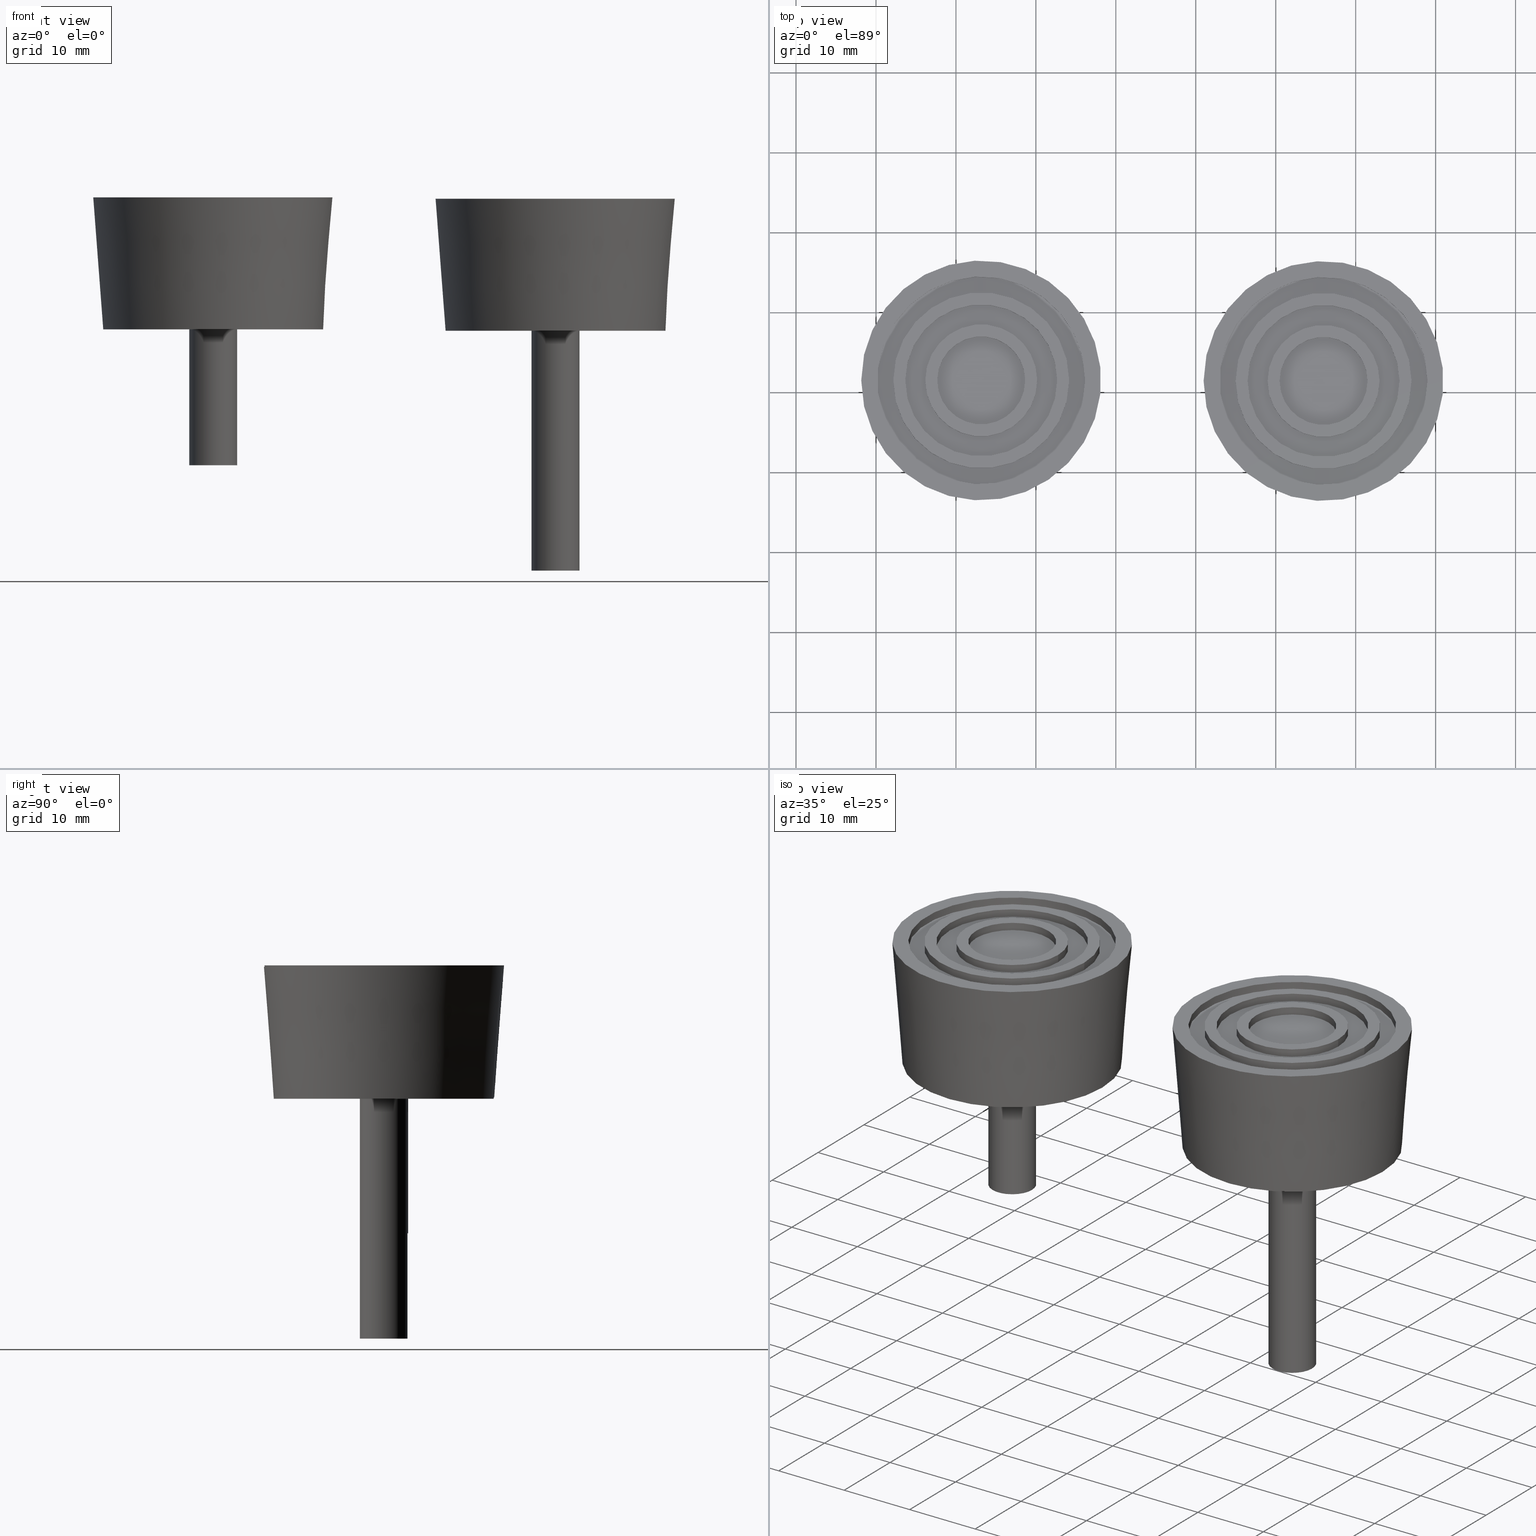
[diagram: canonical four-view strip — front | top / right | iso, engineering-drawing reading convention]
A machine part, canonical four-view strip (front | top / right | iso — engineering-drawing reading convention). The complete STEP part file that produces these views, byte-faithful:
ISO-10303-21;
HEADER;
/* Generated by software containing ST-Developer
 * from STEP Tools, Inc. (www.steptools.com) 
 */

FILE_DESCRIPTION(
/* description */ (''),
/* implementation_level */ '2;1');

FILE_NAME(
/* name */ '\\\\SYNOLOGYNAS\\web\\db2\\PRM6-2\\\X2\B3C4BA74\X0\\\PRM6-
2_M.stp',
/* time_stamp */ '2023-04-18T15:56:30+09:00',
/* author */ ('user'),
/* organization */ (''),
/* preprocessor_version */ 'ST-DEVELOPER v15.6',
/* originating_system */ 'Autodesk Inventor 2015',
/* authorisation */ '');

FILE_SCHEMA (('AUTOMOTIVE_DESIGN { 1 0 10303 214 3 1 1 }'));
ENDSEC;

DATA;
#10=MECHANICAL_DESIGN_GEOMETRIC_PRESENTATION_REPRESENTATION('',(#23,#24),
#1028);
#11=ITEM_DEFINED_TRANSFORMATION($,$,#561,#662);
#12=ITEM_DEFINED_TRANSFORMATION($,$,#611,#663);
#13=(
REPRESENTATION_RELATIONSHIP($,$,#1043,#1045)
REPRESENTATION_RELATIONSHIP_WITH_TRANSFORMATION(#11)
SHAPE_REPRESENTATION_RELATIONSHIP()
);
#14=(
REPRESENTATION_RELATIONSHIP($,$,#1044,#1045)
REPRESENTATION_RELATIONSHIP_WITH_TRANSFORMATION(#12)
SHAPE_REPRESENTATION_RELATIONSHIP()
);
#15=CONTEXT_DEPENDENT_SHAPE_REPRESENTATION(#13,#1041);
#16=CONTEXT_DEPENDENT_SHAPE_REPRESENTATION(#14,#1042);
#17=NEXT_ASSEMBLY_USAGE_OCCURRENCE('DR_PRM6-2(17):1',$,$,#1049,#1047,$);
#18=NEXT_ASSEMBLY_USAGE_OCCURRENCE('DR_PRM6-2(30):1',$,$,#1049,#1048,$);
#19=SHAPE_REPRESENTATION_RELATIONSHIP('SRR','None',#1043,#21);
#20=SHAPE_REPRESENTATION_RELATIONSHIP('SRR','None',#1044,#22);
#21=ADVANCED_BREP_SHAPE_REPRESENTATION($,(#25),#1025);
#22=ADVANCED_BREP_SHAPE_REPRESENTATION($,(#26),#1026);
#23=STYLED_ITEM('',(#1062),#25);
#24=STYLED_ITEM('',(#1062),#26);
#25=MANIFOLD_SOLID_BREP('\X2\C194B9ACB4DC\X0\1',#559);
#26=MANIFOLD_SOLID_BREP('\X2\C194B9ACB4DC\X0\1',#560);
#27=CONICAL_SURFACE('',#610,15.,4.33231398318851);
#28=CONICAL_SURFACE('',#660,15.,4.33231398318851);
#29=PLANE('',#565);
#30=PLANE('',#572);
#31=PLANE('',#579);
#32=PLANE('',#583);
#33=PLANE('',#584);
#34=PLANE('',#585);
#35=PLANE('',#593);
#36=PLANE('',#600);
#37=PLANE('',#604);
#38=PLANE('',#605);
#39=PLANE('',#606);
#40=PLANE('',#608);
#41=PLANE('',#609);
#42=PLANE('',#615);
#43=PLANE('',#622);
#44=PLANE('',#629);
#45=PLANE('',#633);
#46=PLANE('',#634);
#47=PLANE('',#635);
#48=PLANE('',#643);
#49=PLANE('',#650);
#50=PLANE('',#654);
#51=PLANE('',#655);
#52=PLANE('',#656);
#53=PLANE('',#658);
#54=PLANE('',#659);
#55=FACE_BOUND('',#152,.T.);
#56=FACE_BOUND('',#155,.T.);
#57=FACE_BOUND('',#157,.T.);
#58=FACE_BOUND('',#159,.T.);
#59=FACE_BOUND('',#161,.T.);
#60=FACE_BOUND('',#163,.T.);
#61=FACE_BOUND('',#165,.T.);
#62=FACE_BOUND('',#167,.T.);
#63=FACE_BOUND('',#169,.T.);
#64=FACE_BOUND('',#171,.T.);
#65=FACE_BOUND('',#173,.T.);
#66=FACE_BOUND('',#175,.T.);
#67=FACE_BOUND('',#177,.T.);
#68=FACE_BOUND('',#179,.T.);
#69=FACE_BOUND('',#181,.T.);
#70=FACE_BOUND('',#183,.T.);
#71=FACE_BOUND('',#185,.T.);
#72=FACE_BOUND('',#187,.T.);
#73=FACE_BOUND('',#190,.T.);
#74=FACE_BOUND('',#192,.T.);
#75=FACE_BOUND('',#194,.T.);
#76=FACE_BOUND('',#196,.T.);
#77=FACE_BOUND('',#198,.T.);
#78=FACE_BOUND('',#200,.T.);
#79=FACE_BOUND('',#203,.T.);
#80=FACE_BOUND('',#205,.T.);
#81=FACE_BOUND('',#207,.T.);
#82=FACE_BOUND('',#209,.T.);
#83=FACE_BOUND('',#211,.T.);
#84=FACE_BOUND('',#213,.T.);
#85=FACE_BOUND('',#215,.T.);
#86=FACE_BOUND('',#217,.T.);
#87=FACE_BOUND('',#219,.T.);
#88=FACE_BOUND('',#221,.T.);
#89=FACE_BOUND('',#223,.T.);
#90=FACE_BOUND('',#225,.T.);
#91=FACE_BOUND('',#227,.T.);
#92=FACE_BOUND('',#229,.T.);
#93=FACE_BOUND('',#231,.T.);
#94=FACE_BOUND('',#233,.T.);
#95=FACE_BOUND('',#235,.T.);
#96=FACE_BOUND('',#238,.T.);
#97=FACE_BOUND('',#240,.T.);
#98=FACE_BOUND('',#242,.T.);
#99=FACE_BOUND('',#244,.T.);
#100=FACE_BOUND('',#246,.T.);
#101=FACE_OUTER_BOUND('',#151,.T.);
#102=FACE_OUTER_BOUND('',#153,.T.);
#103=FACE_OUTER_BOUND('',#154,.T.);
#104=FACE_OUTER_BOUND('',#156,.T.);
#105=FACE_OUTER_BOUND('',#158,.T.);
#106=FACE_OUTER_BOUND('',#160,.T.);
#107=FACE_OUTER_BOUND('',#162,.T.);
#108=FACE_OUTER_BOUND('',#164,.T.);
#109=FACE_OUTER_BOUND('',#166,.T.);
#110=FACE_OUTER_BOUND('',#168,.T.);
#111=FACE_OUTER_BOUND('',#170,.T.);
#112=FACE_OUTER_BOUND('',#172,.T.);
#113=FACE_OUTER_BOUND('',#174,.T.);
#114=FACE_OUTER_BOUND('',#176,.T.);
#115=FACE_OUTER_BOUND('',#178,.T.);
#116=FACE_OUTER_BOUND('',#180,.T.);
#117=FACE_OUTER_BOUND('',#182,.T.);
#118=FACE_OUTER_BOUND('',#184,.T.);
#119=FACE_OUTER_BOUND('',#186,.T.);
#120=FACE_OUTER_BOUND('',#188,.T.);
#121=FACE_OUTER_BOUND('',#189,.T.);
#122=FACE_OUTER_BOUND('',#191,.T.);
#123=FACE_OUTER_BOUND('',#193,.T.);
#124=FACE_OUTER_BOUND('',#195,.T.);
#125=FACE_OUTER_BOUND('',#197,.T.);
#126=FACE_OUTER_BOUND('',#199,.T.);
#127=FACE_OUTER_BOUND('',#201,.T.);
#128=FACE_OUTER_BOUND('',#202,.T.);
#129=FACE_OUTER_BOUND('',#204,.T.);
#130=FACE_OUTER_BOUND('',#206,.T.);
#131=FACE_OUTER_BOUND('',#208,.T.);
#132=FACE_OUTER_BOUND('',#210,.T.);
#133=FACE_OUTER_BOUND('',#212,.T.);
#134=FACE_OUTER_BOUND('',#214,.T.);
#135=FACE_OUTER_BOUND('',#216,.T.);
#136=FACE_OUTER_BOUND('',#218,.T.);
#137=FACE_OUTER_BOUND('',#220,.T.);
#138=FACE_OUTER_BOUND('',#222,.T.);
#139=FACE_OUTER_BOUND('',#224,.T.);
#140=FACE_OUTER_BOUND('',#226,.T.);
#141=FACE_OUTER_BOUND('',#228,.T.);
#142=FACE_OUTER_BOUND('',#230,.T.);
#143=FACE_OUTER_BOUND('',#232,.T.);
#144=FACE_OUTER_BOUND('',#234,.T.);
#145=FACE_OUTER_BOUND('',#236,.T.);
#146=FACE_OUTER_BOUND('',#237,.T.);
#147=FACE_OUTER_BOUND('',#239,.T.);
#148=FACE_OUTER_BOUND('',#241,.T.);
#149=FACE_OUTER_BOUND('',#243,.T.);
#150=FACE_OUTER_BOUND('',#245,.T.);
#151=EDGE_LOOP('',(#391));
#152=EDGE_LOOP('',(#392));
#153=EDGE_LOOP('',(#393));
#154=EDGE_LOOP('',(#394));
#155=EDGE_LOOP('',(#395));
#156=EDGE_LOOP('',(#396));
#157=EDGE_LOOP('',(#397));
#158=EDGE_LOOP('',(#398));
#159=EDGE_LOOP('',(#399));
#160=EDGE_LOOP('',(#400));
#161=EDGE_LOOP('',(#401));
#162=EDGE_LOOP('',(#402));
#163=EDGE_LOOP('',(#403));
#164=EDGE_LOOP('',(#404));
#165=EDGE_LOOP('',(#405));
#166=EDGE_LOOP('',(#406));
#167=EDGE_LOOP('',(#407));
#168=EDGE_LOOP('',(#408));
#169=EDGE_LOOP('',(#409));
#170=EDGE_LOOP('',(#410));
#171=EDGE_LOOP('',(#411));
#172=EDGE_LOOP('',(#412));
#173=EDGE_LOOP('',(#413));
#174=EDGE_LOOP('',(#414));
#175=EDGE_LOOP('',(#415));
#176=EDGE_LOOP('',(#416));
#177=EDGE_LOOP('',(#417));
#178=EDGE_LOOP('',(#418));
#179=EDGE_LOOP('',(#419));
#180=EDGE_LOOP('',(#420));
#181=EDGE_LOOP('',(#421));
#182=EDGE_LOOP('',(#422));
#183=EDGE_LOOP('',(#423));
#184=EDGE_LOOP('',(#424));
#185=EDGE_LOOP('',(#425));
#186=EDGE_LOOP('',(#426));
#187=EDGE_LOOP('',(#427));
#188=EDGE_LOOP('',(#428));
#189=EDGE_LOOP('',(#429));
#190=EDGE_LOOP('',(#430));
#191=EDGE_LOOP('',(#431));
#192=EDGE_LOOP('',(#432));
#193=EDGE_LOOP('',(#433));
#194=EDGE_LOOP('',(#434));
#195=EDGE_LOOP('',(#435));
#196=EDGE_LOOP('',(#436));
#197=EDGE_LOOP('',(#437));
#198=EDGE_LOOP('',(#438));
#199=EDGE_LOOP('',(#439));
#200=EDGE_LOOP('',(#440));
#201=EDGE_LOOP('',(#441));
#202=EDGE_LOOP('',(#442));
#203=EDGE_LOOP('',(#443));
#204=EDGE_LOOP('',(#444));
#205=EDGE_LOOP('',(#445));
#206=EDGE_LOOP('',(#446));
#207=EDGE_LOOP('',(#447));
#208=EDGE_LOOP('',(#448));
#209=EDGE_LOOP('',(#449));
#210=EDGE_LOOP('',(#450));
#211=EDGE_LOOP('',(#451));
#212=EDGE_LOOP('',(#452));
#213=EDGE_LOOP('',(#453));
#214=EDGE_LOOP('',(#454));
#215=EDGE_LOOP('',(#455));
#216=EDGE_LOOP('',(#456));
#217=EDGE_LOOP('',(#457));
#218=EDGE_LOOP('',(#458));
#219=EDGE_LOOP('',(#459));
#220=EDGE_LOOP('',(#460));
#221=EDGE_LOOP('',(#461));
#222=EDGE_LOOP('',(#462));
#223=EDGE_LOOP('',(#463));
#224=EDGE_LOOP('',(#464));
#225=EDGE_LOOP('',(#465));
#226=EDGE_LOOP('',(#466));
#227=EDGE_LOOP('',(#467));
#228=EDGE_LOOP('',(#468));
#229=EDGE_LOOP('',(#469));
#230=EDGE_LOOP('',(#470));
#231=EDGE_LOOP('',(#471));
#232=EDGE_LOOP('',(#472));
#233=EDGE_LOOP('',(#473));
#234=EDGE_LOOP('',(#474));
#235=EDGE_LOOP('',(#475));
#236=EDGE_LOOP('',(#476));
#237=EDGE_LOOP('',(#477));
#238=EDGE_LOOP('',(#478));
#239=EDGE_LOOP('',(#479));
#240=EDGE_LOOP('',(#480));
#241=EDGE_LOOP('',(#481));
#242=EDGE_LOOP('',(#482));
#243=EDGE_LOOP('',(#483));
#244=EDGE_LOOP('',(#484));
#245=EDGE_LOOP('',(#485));
#246=EDGE_LOOP('',(#486));
#247=CIRCLE('',#563,3.);
#248=CIRCLE('',#564,3.);
#249=CIRCLE('',#567,10.);
#250=CIRCLE('',#568,10.);
#251=CIRCLE('',#570,11.75);
#252=CIRCLE('',#571,11.75);
#253=CIRCLE('',#574,6.5);
#254=CIRCLE('',#575,6.5);
#255=CIRCLE('',#577,8.25);
#256=CIRCLE('',#578,8.25);
#257=CIRCLE('',#581,4.75);
#258=CIRCLE('',#582,4.75);
#259=CIRCLE('',#586,13.75);
#260=CIRCLE('',#588,11.);
#261=CIRCLE('',#589,11.);
#262=CIRCLE('',#591,13.);
#263=CIRCLE('',#592,13.);
#264=CIRCLE('',#595,7.);
#265=CIRCLE('',#596,7.);
#266=CIRCLE('',#598,9.5);
#267=CIRCLE('',#599,9.5);
#268=CIRCLE('',#602,5.5);
#269=CIRCLE('',#603,5.5);
#270=CIRCLE('',#607,15.);
#271=CIRCLE('',#613,3.);
#272=CIRCLE('',#614,3.);
#273=CIRCLE('',#617,10.);
#274=CIRCLE('',#618,10.);
#275=CIRCLE('',#620,11.75);
#276=CIRCLE('',#621,11.75);
#277=CIRCLE('',#624,6.5);
#278=CIRCLE('',#625,6.5);
#279=CIRCLE('',#627,8.25);
#280=CIRCLE('',#628,8.25);
#281=CIRCLE('',#631,4.75);
#282=CIRCLE('',#632,4.75);
#283=CIRCLE('',#636,13.75);
#284=CIRCLE('',#638,11.);
#285=CIRCLE('',#639,11.);
#286=CIRCLE('',#641,13.);
#287=CIRCLE('',#642,13.);
#288=CIRCLE('',#645,7.);
#289=CIRCLE('',#646,7.);
#290=CIRCLE('',#648,9.5);
#291=CIRCLE('',#649,9.5);
#292=CIRCLE('',#652,5.5);
#293=CIRCLE('',#653,5.5);
#294=CIRCLE('',#657,15.);
#295=VERTEX_POINT('',#872);
#296=VERTEX_POINT('',#874);
#297=VERTEX_POINT('',#878);
#298=VERTEX_POINT('',#880);
#299=VERTEX_POINT('',#883);
#300=VERTEX_POINT('',#885);
#301=VERTEX_POINT('',#889);
#302=VERTEX_POINT('',#891);
#303=VERTEX_POINT('',#894);
#304=VERTEX_POINT('',#896);
#305=VERTEX_POINT('',#900);
#306=VERTEX_POINT('',#902);
#307=VERTEX_POINT('',#907);
#308=VERTEX_POINT('',#910);
#309=VERTEX_POINT('',#912);
#310=VERTEX_POINT('',#915);
#311=VERTEX_POINT('',#917);
#312=VERTEX_POINT('',#921);
#313=VERTEX_POINT('',#923);
#314=VERTEX_POINT('',#926);
#315=VERTEX_POINT('',#928);
#316=VERTEX_POINT('',#932);
#317=VERTEX_POINT('',#934);
#318=VERTEX_POINT('',#939);
#319=VERTEX_POINT('',#946);
#320=VERTEX_POINT('',#948);
#321=VERTEX_POINT('',#952);
#322=VERTEX_POINT('',#954);
#323=VERTEX_POINT('',#957);
#324=VERTEX_POINT('',#959);
#325=VERTEX_POINT('',#963);
#326=VERTEX_POINT('',#965);
#327=VERTEX_POINT('',#968);
#328=VERTEX_POINT('',#970);
#329=VERTEX_POINT('',#974);
#330=VERTEX_POINT('',#976);
#331=VERTEX_POINT('',#981);
#332=VERTEX_POINT('',#984);
#333=VERTEX_POINT('',#986);
#334=VERTEX_POINT('',#989);
#335=VERTEX_POINT('',#991);
#336=VERTEX_POINT('',#995);
#337=VERTEX_POINT('',#997);
#338=VERTEX_POINT('',#1000);
#339=VERTEX_POINT('',#1002);
#340=VERTEX_POINT('',#1006);
#341=VERTEX_POINT('',#1008);
#342=VERTEX_POINT('',#1013);
#343=EDGE_CURVE('',#295,#295,#247,.T.);
#344=EDGE_CURVE('',#296,#296,#248,.T.);
#345=EDGE_CURVE('',#297,#297,#249,.T.);
#346=EDGE_CURVE('',#298,#298,#250,.T.);
#347=EDGE_CURVE('',#299,#299,#251,.T.);
#348=EDGE_CURVE('',#300,#300,#252,.T.);
#349=EDGE_CURVE('',#301,#301,#253,.T.);
#350=EDGE_CURVE('',#302,#302,#254,.T.);
#351=EDGE_CURVE('',#303,#303,#255,.T.);
#352=EDGE_CURVE('',#304,#304,#256,.T.);
#353=EDGE_CURVE('',#305,#305,#257,.T.);
#354=EDGE_CURVE('',#306,#306,#258,.T.);
#355=EDGE_CURVE('',#307,#307,#259,.T.);
#356=EDGE_CURVE('',#308,#308,#260,.T.);
#357=EDGE_CURVE('',#309,#309,#261,.T.);
#358=EDGE_CURVE('',#310,#310,#262,.T.);
#359=EDGE_CURVE('',#311,#311,#263,.T.);
#360=EDGE_CURVE('',#312,#312,#264,.T.);
#361=EDGE_CURVE('',#313,#313,#265,.T.);
#362=EDGE_CURVE('',#314,#314,#266,.T.);
#363=EDGE_CURVE('',#315,#315,#267,.T.);
#364=EDGE_CURVE('',#316,#316,#268,.T.);
#365=EDGE_CURVE('',#317,#317,#269,.T.);
#366=EDGE_CURVE('',#318,#318,#270,.T.);
#367=EDGE_CURVE('',#319,#319,#271,.T.);
#368=EDGE_CURVE('',#320,#320,#272,.T.);
#369=EDGE_CURVE('',#321,#321,#273,.T.);
#370=EDGE_CURVE('',#322,#322,#274,.T.);
#371=EDGE_CURVE('',#323,#323,#275,.T.);
#372=EDGE_CURVE('',#324,#324,#276,.T.);
#373=EDGE_CURVE('',#325,#325,#277,.T.);
#374=EDGE_CURVE('',#326,#326,#278,.T.);
#375=EDGE_CURVE('',#327,#327,#279,.T.);
#376=EDGE_CURVE('',#328,#328,#280,.T.);
#377=EDGE_CURVE('',#329,#329,#281,.T.);
#378=EDGE_CURVE('',#330,#330,#282,.T.);
#379=EDGE_CURVE('',#331,#331,#283,.T.);
#380=EDGE_CURVE('',#332,#332,#284,.T.);
#381=EDGE_CURVE('',#333,#333,#285,.T.);
#382=EDGE_CURVE('',#334,#334,#286,.T.);
#383=EDGE_CURVE('',#335,#335,#287,.T.);
#384=EDGE_CURVE('',#336,#336,#288,.T.);
#385=EDGE_CURVE('',#337,#337,#289,.T.);
#386=EDGE_CURVE('',#338,#338,#290,.T.);
#387=EDGE_CURVE('',#339,#339,#291,.T.);
#388=EDGE_CURVE('',#340,#340,#292,.T.);
#389=EDGE_CURVE('',#341,#341,#293,.T.);
#390=EDGE_CURVE('',#342,#342,#294,.T.);
#391=ORIENTED_EDGE('',*,*,#343,.F.);
#392=ORIENTED_EDGE('',*,*,#344,.F.);
#393=ORIENTED_EDGE('',*,*,#343,.T.);
#394=ORIENTED_EDGE('',*,*,#345,.T.);
#395=ORIENTED_EDGE('',*,*,#346,.F.);
#396=ORIENTED_EDGE('',*,*,#347,.T.);
#397=ORIENTED_EDGE('',*,*,#348,.F.);
#398=ORIENTED_EDGE('',*,*,#347,.F.);
#399=ORIENTED_EDGE('',*,*,#345,.F.);
#400=ORIENTED_EDGE('',*,*,#349,.T.);
#401=ORIENTED_EDGE('',*,*,#350,.F.);
#402=ORIENTED_EDGE('',*,*,#351,.T.);
#403=ORIENTED_EDGE('',*,*,#352,.F.);
#404=ORIENTED_EDGE('',*,*,#351,.F.);
#405=ORIENTED_EDGE('',*,*,#349,.F.);
#406=ORIENTED_EDGE('',*,*,#353,.T.);
#407=ORIENTED_EDGE('',*,*,#354,.F.);
#408=ORIENTED_EDGE('',*,*,#353,.F.);
#409=ORIENTED_EDGE('',*,*,#344,.T.);
#410=ORIENTED_EDGE('',*,*,#346,.T.);
#411=ORIENTED_EDGE('',*,*,#352,.T.);
#412=ORIENTED_EDGE('',*,*,#355,.F.);
#413=ORIENTED_EDGE('',*,*,#348,.T.);
#414=ORIENTED_EDGE('',*,*,#356,.T.);
#415=ORIENTED_EDGE('',*,*,#357,.F.);
#416=ORIENTED_EDGE('',*,*,#358,.T.);
#417=ORIENTED_EDGE('',*,*,#359,.F.);
#418=ORIENTED_EDGE('',*,*,#358,.F.);
#419=ORIENTED_EDGE('',*,*,#356,.F.);
#420=ORIENTED_EDGE('',*,*,#360,.T.);
#421=ORIENTED_EDGE('',*,*,#361,.F.);
#422=ORIENTED_EDGE('',*,*,#362,.T.);
#423=ORIENTED_EDGE('',*,*,#363,.F.);
#424=ORIENTED_EDGE('',*,*,#362,.F.);
#425=ORIENTED_EDGE('',*,*,#360,.F.);
#426=ORIENTED_EDGE('',*,*,#364,.T.);
#427=ORIENTED_EDGE('',*,*,#365,.F.);
#428=ORIENTED_EDGE('',*,*,#364,.F.);
#429=ORIENTED_EDGE('',*,*,#357,.T.);
#430=ORIENTED_EDGE('',*,*,#363,.T.);
#431=ORIENTED_EDGE('',*,*,#366,.F.);
#432=ORIENTED_EDGE('',*,*,#359,.T.);
#433=ORIENTED_EDGE('',*,*,#350,.T.);
#434=ORIENTED_EDGE('',*,*,#354,.T.);
#435=ORIENTED_EDGE('',*,*,#361,.T.);
#436=ORIENTED_EDGE('',*,*,#365,.T.);
#437=ORIENTED_EDGE('',*,*,#366,.T.);
#438=ORIENTED_EDGE('',*,*,#355,.T.);
#439=ORIENTED_EDGE('',*,*,#367,.F.);
#440=ORIENTED_EDGE('',*,*,#368,.F.);
#441=ORIENTED_EDGE('',*,*,#367,.T.);
#442=ORIENTED_EDGE('',*,*,#369,.T.);
#443=ORIENTED_EDGE('',*,*,#370,.F.);
#444=ORIENTED_EDGE('',*,*,#371,.T.);
#445=ORIENTED_EDGE('',*,*,#372,.F.);
#446=ORIENTED_EDGE('',*,*,#371,.F.);
#447=ORIENTED_EDGE('',*,*,#369,.F.);
#448=ORIENTED_EDGE('',*,*,#373,.T.);
#449=ORIENTED_EDGE('',*,*,#374,.F.);
#450=ORIENTED_EDGE('',*,*,#375,.T.);
#451=ORIENTED_EDGE('',*,*,#376,.F.);
#452=ORIENTED_EDGE('',*,*,#375,.F.);
#453=ORIENTED_EDGE('',*,*,#373,.F.);
#454=ORIENTED_EDGE('',*,*,#377,.T.);
#455=ORIENTED_EDGE('',*,*,#378,.F.);
#456=ORIENTED_EDGE('',*,*,#377,.F.);
#457=ORIENTED_EDGE('',*,*,#368,.T.);
#458=ORIENTED_EDGE('',*,*,#370,.T.);
#459=ORIENTED_EDGE('',*,*,#376,.T.);
#460=ORIENTED_EDGE('',*,*,#379,.F.);
#461=ORIENTED_EDGE('',*,*,#372,.T.);
#462=ORIENTED_EDGE('',*,*,#380,.T.);
#463=ORIENTED_EDGE('',*,*,#381,.F.);
#464=ORIENTED_EDGE('',*,*,#382,.T.);
#465=ORIENTED_EDGE('',*,*,#383,.F.);
#466=ORIENTED_EDGE('',*,*,#382,.F.);
#467=ORIENTED_EDGE('',*,*,#380,.F.);
#468=ORIENTED_EDGE('',*,*,#384,.T.);
#469=ORIENTED_EDGE('',*,*,#385,.F.);
#470=ORIENTED_EDGE('',*,*,#386,.T.);
#471=ORIENTED_EDGE('',*,*,#387,.F.);
#472=ORIENTED_EDGE('',*,*,#386,.F.);
#473=ORIENTED_EDGE('',*,*,#384,.F.);
#474=ORIENTED_EDGE('',*,*,#388,.T.);
#475=ORIENTED_EDGE('',*,*,#389,.F.);
#476=ORIENTED_EDGE('',*,*,#388,.F.);
#477=ORIENTED_EDGE('',*,*,#381,.T.);
#478=ORIENTED_EDGE('',*,*,#387,.T.);
#479=ORIENTED_EDGE('',*,*,#390,.F.);
#480=ORIENTED_EDGE('',*,*,#383,.T.);
#481=ORIENTED_EDGE('',*,*,#374,.T.);
#482=ORIENTED_EDGE('',*,*,#378,.T.);
#483=ORIENTED_EDGE('',*,*,#385,.T.);
#484=ORIENTED_EDGE('',*,*,#389,.T.);
#485=ORIENTED_EDGE('',*,*,#390,.T.);
#486=ORIENTED_EDGE('',*,*,#379,.T.);
#487=CYLINDRICAL_SURFACE('',#562,3.);
#488=CYLINDRICAL_SURFACE('',#566,10.);
#489=CYLINDRICAL_SURFACE('',#569,11.75);
#490=CYLINDRICAL_SURFACE('',#573,6.5);
#491=CYLINDRICAL_SURFACE('',#576,8.25);
#492=CYLINDRICAL_SURFACE('',#580,4.75);
#493=CYLINDRICAL_SURFACE('',#587,11.);
#494=CYLINDRICAL_SURFACE('',#590,13.);
#495=CYLINDRICAL_SURFACE('',#594,7.);
#496=CYLINDRICAL_SURFACE('',#597,9.5);
#497=CYLINDRICAL_SURFACE('',#601,5.5);
#498=CYLINDRICAL_SURFACE('',#612,3.);
#499=CYLINDRICAL_SURFACE('',#616,10.);
#500=CYLINDRICAL_SURFACE('',#619,11.75);
#501=CYLINDRICAL_SURFACE('',#623,6.5);
#502=CYLINDRICAL_SURFACE('',#626,8.25);
#503=CYLINDRICAL_SURFACE('',#630,4.75);
#504=CYLINDRICAL_SURFACE('',#637,11.);
#505=CYLINDRICAL_SURFACE('',#640,13.);
#506=CYLINDRICAL_SURFACE('',#644,7.);
#507=CYLINDRICAL_SURFACE('',#647,9.5);
#508=CYLINDRICAL_SURFACE('',#651,5.5);
#509=ADVANCED_FACE('',(#101,#55),#487,.T.);
#510=ADVANCED_FACE('',(#102),#29,.F.);
#511=ADVANCED_FACE('',(#103,#56),#488,.T.);
#512=ADVANCED_FACE('',(#104,#57),#489,.F.);
#513=ADVANCED_FACE('',(#105,#58),#30,.F.);
#514=ADVANCED_FACE('',(#106,#59),#490,.T.);
#515=ADVANCED_FACE('',(#107,#60),#491,.F.);
#516=ADVANCED_FACE('',(#108,#61),#31,.F.);
#517=ADVANCED_FACE('',(#109,#62),#492,.F.);
#518=ADVANCED_FACE('',(#110,#63),#32,.F.);
#519=ADVANCED_FACE('',(#111,#64),#33,.F.);
#520=ADVANCED_FACE('',(#112,#65),#34,.F.);
#521=ADVANCED_FACE('',(#113,#66),#493,.T.);
#522=ADVANCED_FACE('',(#114,#67),#494,.F.);
#523=ADVANCED_FACE('',(#115,#68),#35,.T.);
#524=ADVANCED_FACE('',(#116,#69),#495,.T.);
#525=ADVANCED_FACE('',(#117,#70),#496,.F.);
#526=ADVANCED_FACE('',(#118,#71),#36,.T.);
#527=ADVANCED_FACE('',(#119,#72),#497,.F.);
#528=ADVANCED_FACE('',(#120),#37,.T.);
#529=ADVANCED_FACE('',(#121,#73),#38,.F.);
#530=ADVANCED_FACE('',(#122,#74),#39,.F.);
#531=ADVANCED_FACE('',(#123,#75),#40,.F.);
#532=ADVANCED_FACE('',(#124,#76),#41,.F.);
#533=ADVANCED_FACE('',(#125,#77),#27,.T.);
#534=ADVANCED_FACE('',(#126,#78),#498,.T.);
#535=ADVANCED_FACE('',(#127),#42,.F.);
#536=ADVANCED_FACE('',(#128,#79),#499,.T.);
#537=ADVANCED_FACE('',(#129,#80),#500,.F.);
#538=ADVANCED_FACE('',(#130,#81),#43,.F.);
#539=ADVANCED_FACE('',(#131,#82),#501,.T.);
#540=ADVANCED_FACE('',(#132,#83),#502,.F.);
#541=ADVANCED_FACE('',(#133,#84),#44,.F.);
#542=ADVANCED_FACE('',(#134,#85),#503,.F.);
#543=ADVANCED_FACE('',(#135,#86),#45,.F.);
#544=ADVANCED_FACE('',(#136,#87),#46,.F.);
#545=ADVANCED_FACE('',(#137,#88),#47,.F.);
#546=ADVANCED_FACE('',(#138,#89),#504,.T.);
#547=ADVANCED_FACE('',(#139,#90),#505,.F.);
#548=ADVANCED_FACE('',(#140,#91),#48,.T.);
#549=ADVANCED_FACE('',(#141,#92),#506,.T.);
#550=ADVANCED_FACE('',(#142,#93),#507,.F.);
#551=ADVANCED_FACE('',(#143,#94),#49,.T.);
#552=ADVANCED_FACE('',(#144,#95),#508,.F.);
#553=ADVANCED_FACE('',(#145),#50,.T.);
#554=ADVANCED_FACE('',(#146,#96),#51,.F.);
#555=ADVANCED_FACE('',(#147,#97),#52,.F.);
#556=ADVANCED_FACE('',(#148,#98),#53,.F.);
#557=ADVANCED_FACE('',(#149,#99),#54,.F.);
#558=ADVANCED_FACE('',(#150,#100),#28,.T.);
#559=CLOSED_SHELL('',(#509,#510,#511,#512,#513,#514,#515,#516,#517,#518,
#519,#520,#521,#522,#523,#524,#525,#526,#527,#528,#529,#530,#531,#532,#533));
#560=CLOSED_SHELL('',(#534,#535,#536,#537,#538,#539,#540,#541,#542,#543,
#544,#545,#546,#547,#548,#549,#550,#551,#552,#553,#554,#555,#556,#557,#558));
#561=AXIS2_PLACEMENT_3D('placement',#870,#664,#665);
#562=AXIS2_PLACEMENT_3D('',#871,#666,#667);
#563=AXIS2_PLACEMENT_3D('',#873,#668,#669);
#564=AXIS2_PLACEMENT_3D('',#875,#670,#671);
#565=AXIS2_PLACEMENT_3D('',#876,#672,#673);
#566=AXIS2_PLACEMENT_3D('',#877,#674,#675);
#567=AXIS2_PLACEMENT_3D('',#879,#676,#677);
#568=AXIS2_PLACEMENT_3D('',#881,#678,#679);
#569=AXIS2_PLACEMENT_3D('',#882,#680,#681);
#570=AXIS2_PLACEMENT_3D('',#884,#682,#683);
#571=AXIS2_PLACEMENT_3D('',#886,#684,#685);
#572=AXIS2_PLACEMENT_3D('',#887,#686,#687);
#573=AXIS2_PLACEMENT_3D('',#888,#688,#689);
#574=AXIS2_PLACEMENT_3D('',#890,#690,#691);
#575=AXIS2_PLACEMENT_3D('',#892,#692,#693);
#576=AXIS2_PLACEMENT_3D('',#893,#694,#695);
#577=AXIS2_PLACEMENT_3D('',#895,#696,#697);
#578=AXIS2_PLACEMENT_3D('',#897,#698,#699);
#579=AXIS2_PLACEMENT_3D('',#898,#700,#701);
#580=AXIS2_PLACEMENT_3D('',#899,#702,#703);
#581=AXIS2_PLACEMENT_3D('',#901,#704,#705);
#582=AXIS2_PLACEMENT_3D('',#903,#706,#707);
#583=AXIS2_PLACEMENT_3D('',#904,#708,#709);
#584=AXIS2_PLACEMENT_3D('',#905,#710,#711);
#585=AXIS2_PLACEMENT_3D('',#906,#712,#713);
#586=AXIS2_PLACEMENT_3D('',#908,#714,#715);
#587=AXIS2_PLACEMENT_3D('',#909,#716,#717);
#588=AXIS2_PLACEMENT_3D('',#911,#718,#719);
#589=AXIS2_PLACEMENT_3D('',#913,#720,#721);
#590=AXIS2_PLACEMENT_3D('',#914,#722,#723);
#591=AXIS2_PLACEMENT_3D('',#916,#724,#725);
#592=AXIS2_PLACEMENT_3D('',#918,#726,#727);
#593=AXIS2_PLACEMENT_3D('',#919,#728,#729);
#594=AXIS2_PLACEMENT_3D('',#920,#730,#731);
#595=AXIS2_PLACEMENT_3D('',#922,#732,#733);
#596=AXIS2_PLACEMENT_3D('',#924,#734,#735);
#597=AXIS2_PLACEMENT_3D('',#925,#736,#737);
#598=AXIS2_PLACEMENT_3D('',#927,#738,#739);
#599=AXIS2_PLACEMENT_3D('',#929,#740,#741);
#600=AXIS2_PLACEMENT_3D('',#930,#742,#743);
#601=AXIS2_PLACEMENT_3D('',#931,#744,#745);
#602=AXIS2_PLACEMENT_3D('',#933,#746,#747);
#603=AXIS2_PLACEMENT_3D('',#935,#748,#749);
#604=AXIS2_PLACEMENT_3D('',#936,#750,#751);
#605=AXIS2_PLACEMENT_3D('',#937,#752,#753);
#606=AXIS2_PLACEMENT_3D('',#938,#754,#755);
#607=AXIS2_PLACEMENT_3D('',#940,#756,#757);
#608=AXIS2_PLACEMENT_3D('',#941,#758,#759);
#609=AXIS2_PLACEMENT_3D('',#942,#760,#761);
#610=AXIS2_PLACEMENT_3D('',#943,#762,#763);
#611=AXIS2_PLACEMENT_3D('placement',#944,#764,#765);
#612=AXIS2_PLACEMENT_3D('',#945,#766,#767);
#613=AXIS2_PLACEMENT_3D('',#947,#768,#769);
#614=AXIS2_PLACEMENT_3D('',#949,#770,#771);
#615=AXIS2_PLACEMENT_3D('',#950,#772,#773);
#616=AXIS2_PLACEMENT_3D('',#951,#774,#775);
#617=AXIS2_PLACEMENT_3D('',#953,#776,#777);
#618=AXIS2_PLACEMENT_3D('',#955,#778,#779);
#619=AXIS2_PLACEMENT_3D('',#956,#780,#781);
#620=AXIS2_PLACEMENT_3D('',#958,#782,#783);
#621=AXIS2_PLACEMENT_3D('',#960,#784,#785);
#622=AXIS2_PLACEMENT_3D('',#961,#786,#787);
#623=AXIS2_PLACEMENT_3D('',#962,#788,#789);
#624=AXIS2_PLACEMENT_3D('',#964,#790,#791);
#625=AXIS2_PLACEMENT_3D('',#966,#792,#793);
#626=AXIS2_PLACEMENT_3D('',#967,#794,#795);
#627=AXIS2_PLACEMENT_3D('',#969,#796,#797);
#628=AXIS2_PLACEMENT_3D('',#971,#798,#799);
#629=AXIS2_PLACEMENT_3D('',#972,#800,#801);
#630=AXIS2_PLACEMENT_3D('',#973,#802,#803);
#631=AXIS2_PLACEMENT_3D('',#975,#804,#805);
#632=AXIS2_PLACEMENT_3D('',#977,#806,#807);
#633=AXIS2_PLACEMENT_3D('',#978,#808,#809);
#634=AXIS2_PLACEMENT_3D('',#979,#810,#811);
#635=AXIS2_PLACEMENT_3D('',#980,#812,#813);
#636=AXIS2_PLACEMENT_3D('',#982,#814,#815);
#637=AXIS2_PLACEMENT_3D('',#983,#816,#817);
#638=AXIS2_PLACEMENT_3D('',#985,#818,#819);
#639=AXIS2_PLACEMENT_3D('',#987,#820,#821);
#640=AXIS2_PLACEMENT_3D('',#988,#822,#823);
#641=AXIS2_PLACEMENT_3D('',#990,#824,#825);
#642=AXIS2_PLACEMENT_3D('',#992,#826,#827);
#643=AXIS2_PLACEMENT_3D('',#993,#828,#829);
#644=AXIS2_PLACEMENT_3D('',#994,#830,#831);
#645=AXIS2_PLACEMENT_3D('',#996,#832,#833);
#646=AXIS2_PLACEMENT_3D('',#998,#834,#835);
#647=AXIS2_PLACEMENT_3D('',#999,#836,#837);
#648=AXIS2_PLACEMENT_3D('',#1001,#838,#839);
#649=AXIS2_PLACEMENT_3D('',#1003,#840,#841);
#650=AXIS2_PLACEMENT_3D('',#1004,#842,#843);
#651=AXIS2_PLACEMENT_3D('',#1005,#844,#845);
#652=AXIS2_PLACEMENT_3D('',#1007,#846,#847);
#653=AXIS2_PLACEMENT_3D('',#1009,#848,#849);
#654=AXIS2_PLACEMENT_3D('',#1010,#850,#851);
#655=AXIS2_PLACEMENT_3D('',#1011,#852,#853);
#656=AXIS2_PLACEMENT_3D('',#1012,#854,#855);
#657=AXIS2_PLACEMENT_3D('',#1014,#856,#857);
#658=AXIS2_PLACEMENT_3D('',#1015,#858,#859);
#659=AXIS2_PLACEMENT_3D('',#1016,#860,#861);
#660=AXIS2_PLACEMENT_3D('',#1017,#862,#863);
#661=AXIS2_PLACEMENT_3D('placement',#1018,#864,#865);
#662=AXIS2_PLACEMENT_3D('',#1019,#866,#867);
#663=AXIS2_PLACEMENT_3D('',#1020,#868,#869);
#664=DIRECTION('axis',(0.,0.,1.));
#665=DIRECTION('refdir',(1.,0.,0.));
#666=DIRECTION('center_axis',(0.,0.,-1.));
#667=DIRECTION('ref_axis',(1.,0.,0.));
#668=DIRECTION('center_axis',(0.,0.,-1.));
#669=DIRECTION('ref_axis',(1.,0.,0.));
#670=DIRECTION('center_axis',(0.,0.,1.));
#671=DIRECTION('ref_axis',(1.,0.,0.));
#672=DIRECTION('center_axis',(0.,0.,1.));
#673=DIRECTION('ref_axis',(1.,0.,0.));
#674=DIRECTION('center_axis',(0.,0.,1.));
#675=DIRECTION('ref_axis',(1.,0.,0.));
#676=DIRECTION('center_axis',(0.,0.,-1.));
#677=DIRECTION('ref_axis',(1.,0.,0.));
#678=DIRECTION('center_axis',(0.,0.,-1.));
#679=DIRECTION('ref_axis',(1.,0.,0.));
#680=DIRECTION('center_axis',(0.,0.,1.));
#681=DIRECTION('ref_axis',(1.,0.,0.));
#682=DIRECTION('center_axis',(0.,0.,1.));
#683=DIRECTION('ref_axis',(1.,0.,0.));
#684=DIRECTION('center_axis',(0.,0.,1.));
#685=DIRECTION('ref_axis',(1.,0.,0.));
#686=DIRECTION('center_axis',(0.,0.,1.));
#687=DIRECTION('ref_axis',(1.,0.,0.));
#688=DIRECTION('center_axis',(0.,0.,1.));
#689=DIRECTION('ref_axis',(1.,0.,0.));
#690=DIRECTION('center_axis',(0.,0.,-1.));
#691=DIRECTION('ref_axis',(1.,0.,0.));
#692=DIRECTION('center_axis',(0.,0.,-1.));
#693=DIRECTION('ref_axis',(1.,0.,0.));
#694=DIRECTION('center_axis',(0.,0.,1.));
#695=DIRECTION('ref_axis',(1.,0.,0.));
#696=DIRECTION('center_axis',(0.,0.,1.));
#697=DIRECTION('ref_axis',(1.,0.,0.));
#698=DIRECTION('center_axis',(0.,0.,1.));
#699=DIRECTION('ref_axis',(1.,0.,0.));
#700=DIRECTION('center_axis',(0.,0.,1.));
#701=DIRECTION('ref_axis',(1.,0.,0.));
#702=DIRECTION('center_axis',(0.,0.,1.));
#703=DIRECTION('ref_axis',(1.,0.,0.));
#704=DIRECTION('center_axis',(0.,0.,1.));
#705=DIRECTION('ref_axis',(1.,0.,0.));
#706=DIRECTION('center_axis',(0.,0.,1.));
#707=DIRECTION('ref_axis',(1.,0.,0.));
#708=DIRECTION('center_axis',(0.,0.,1.));
#709=DIRECTION('ref_axis',(1.,0.,0.));
#710=DIRECTION('center_axis',(0.,0.,1.));
#711=DIRECTION('ref_axis',(1.,0.,0.));
#712=DIRECTION('center_axis',(0.,0.,1.));
#713=DIRECTION('ref_axis',(1.,0.,0.));
#714=DIRECTION('center_axis',(0.,0.,1.));
#715=DIRECTION('ref_axis',(-1.,0.,0.));
#716=DIRECTION('center_axis',(0.,0.,-1.));
#717=DIRECTION('ref_axis',(-1.,0.,0.));
#718=DIRECTION('center_axis',(0.,0.,1.));
#719=DIRECTION('ref_axis',(-1.,0.,0.));
#720=DIRECTION('center_axis',(0.,0.,1.));
#721=DIRECTION('ref_axis',(-1.,0.,0.));
#722=DIRECTION('center_axis',(0.,0.,-1.));
#723=DIRECTION('ref_axis',(-1.,0.,0.));
#724=DIRECTION('center_axis',(0.,0.,-1.));
#725=DIRECTION('ref_axis',(-1.,0.,0.));
#726=DIRECTION('center_axis',(0.,0.,-1.));
#727=DIRECTION('ref_axis',(-1.,0.,0.));
#728=DIRECTION('center_axis',(0.,0.,1.));
#729=DIRECTION('ref_axis',(1.,0.,0.));
#730=DIRECTION('center_axis',(0.,0.,-1.));
#731=DIRECTION('ref_axis',(-1.,0.,0.));
#732=DIRECTION('center_axis',(0.,0.,1.));
#733=DIRECTION('ref_axis',(-1.,0.,0.));
#734=DIRECTION('center_axis',(0.,0.,1.));
#735=DIRECTION('ref_axis',(-1.,0.,0.));
#736=DIRECTION('center_axis',(0.,0.,-1.));
#737=DIRECTION('ref_axis',(-1.,0.,0.));
#738=DIRECTION('center_axis',(0.,0.,-1.));
#739=DIRECTION('ref_axis',(-1.,0.,0.));
#740=DIRECTION('center_axis',(0.,0.,-1.));
#741=DIRECTION('ref_axis',(-1.,0.,0.));
#742=DIRECTION('center_axis',(0.,0.,1.));
#743=DIRECTION('ref_axis',(1.,0.,0.));
#744=DIRECTION('center_axis',(0.,0.,-1.));
#745=DIRECTION('ref_axis',(-1.,0.,0.));
#746=DIRECTION('center_axis',(0.,0.,-1.));
#747=DIRECTION('ref_axis',(-1.,0.,0.));
#748=DIRECTION('center_axis',(0.,0.,-1.));
#749=DIRECTION('ref_axis',(-1.,0.,0.));
#750=DIRECTION('center_axis',(0.,0.,1.));
#751=DIRECTION('ref_axis',(1.,0.,0.));
#752=DIRECTION('center_axis',(0.,0.,-1.));
#753=DIRECTION('ref_axis',(-1.,0.,0.));
#754=DIRECTION('center_axis',(0.,0.,-1.));
#755=DIRECTION('ref_axis',(-1.,0.,0.));
#756=DIRECTION('center_axis',(0.,0.,-1.));
#757=DIRECTION('ref_axis',(-1.,0.,0.));
#758=DIRECTION('center_axis',(0.,0.,1.));
#759=DIRECTION('ref_axis',(1.,0.,0.));
#760=DIRECTION('center_axis',(0.,0.,-1.));
#761=DIRECTION('ref_axis',(-1.,0.,0.));
#762=DIRECTION('center_axis',(0.,0.,1.));
#763=DIRECTION('ref_axis',(-1.,0.,0.));
#764=DIRECTION('axis',(0.,0.,1.));
#765=DIRECTION('refdir',(1.,0.,0.));
#766=DIRECTION('center_axis',(0.,0.,-1.));
#767=DIRECTION('ref_axis',(1.,0.,0.));
#768=DIRECTION('center_axis',(0.,0.,-1.));
#769=DIRECTION('ref_axis',(1.,0.,0.));
#770=DIRECTION('center_axis',(0.,0.,1.));
#771=DIRECTION('ref_axis',(1.,0.,0.));
#772=DIRECTION('center_axis',(0.,0.,1.));
#773=DIRECTION('ref_axis',(1.,0.,0.));
#774=DIRECTION('center_axis',(0.,0.,1.));
#775=DIRECTION('ref_axis',(1.,0.,0.));
#776=DIRECTION('center_axis',(0.,0.,-1.));
#777=DIRECTION('ref_axis',(1.,0.,0.));
#778=DIRECTION('center_axis',(0.,0.,-1.));
#779=DIRECTION('ref_axis',(1.,0.,0.));
#780=DIRECTION('center_axis',(0.,0.,1.));
#781=DIRECTION('ref_axis',(1.,0.,0.));
#782=DIRECTION('center_axis',(0.,0.,1.));
#783=DIRECTION('ref_axis',(1.,0.,0.));
#784=DIRECTION('center_axis',(0.,0.,1.));
#785=DIRECTION('ref_axis',(1.,0.,0.));
#786=DIRECTION('center_axis',(0.,0.,1.));
#787=DIRECTION('ref_axis',(1.,0.,0.));
#788=DIRECTION('center_axis',(0.,0.,1.));
#789=DIRECTION('ref_axis',(1.,0.,0.));
#790=DIRECTION('center_axis',(0.,0.,-1.));
#791=DIRECTION('ref_axis',(1.,0.,0.));
#792=DIRECTION('center_axis',(0.,0.,-1.));
#793=DIRECTION('ref_axis',(1.,0.,0.));
#794=DIRECTION('center_axis',(0.,0.,1.));
#795=DIRECTION('ref_axis',(1.,0.,0.));
#796=DIRECTION('center_axis',(0.,0.,1.));
#797=DIRECTION('ref_axis',(1.,0.,0.));
#798=DIRECTION('center_axis',(0.,0.,1.));
#799=DIRECTION('ref_axis',(1.,0.,0.));
#800=DIRECTION('center_axis',(0.,0.,1.));
#801=DIRECTION('ref_axis',(1.,0.,0.));
#802=DIRECTION('center_axis',(0.,0.,1.));
#803=DIRECTION('ref_axis',(1.,0.,0.));
#804=DIRECTION('center_axis',(0.,0.,1.));
#805=DIRECTION('ref_axis',(1.,0.,0.));
#806=DIRECTION('center_axis',(0.,0.,1.));
#807=DIRECTION('ref_axis',(1.,0.,0.));
#808=DIRECTION('center_axis',(0.,0.,1.));
#809=DIRECTION('ref_axis',(1.,0.,0.));
#810=DIRECTION('center_axis',(0.,0.,1.));
#811=DIRECTION('ref_axis',(1.,0.,0.));
#812=DIRECTION('center_axis',(0.,0.,1.));
#813=DIRECTION('ref_axis',(1.,0.,0.));
#814=DIRECTION('center_axis',(0.,0.,1.));
#815=DIRECTION('ref_axis',(-1.,0.,0.));
#816=DIRECTION('center_axis',(0.,0.,-1.));
#817=DIRECTION('ref_axis',(-1.,0.,0.));
#818=DIRECTION('center_axis',(0.,0.,1.));
#819=DIRECTION('ref_axis',(-1.,0.,0.));
#820=DIRECTION('center_axis',(0.,0.,1.));
#821=DIRECTION('ref_axis',(-1.,0.,0.));
#822=DIRECTION('center_axis',(0.,0.,-1.));
#823=DIRECTION('ref_axis',(-1.,0.,0.));
#824=DIRECTION('center_axis',(0.,0.,-1.));
#825=DIRECTION('ref_axis',(-1.,0.,0.));
#826=DIRECTION('center_axis',(0.,0.,-1.));
#827=DIRECTION('ref_axis',(-1.,0.,0.));
#828=DIRECTION('center_axis',(0.,0.,1.));
#829=DIRECTION('ref_axis',(1.,0.,0.));
#830=DIRECTION('center_axis',(0.,0.,-1.));
#831=DIRECTION('ref_axis',(-1.,0.,0.));
#832=DIRECTION('center_axis',(0.,0.,1.));
#833=DIRECTION('ref_axis',(-1.,0.,0.));
#834=DIRECTION('center_axis',(0.,0.,1.));
#835=DIRECTION('ref_axis',(-1.,0.,0.));
#836=DIRECTION('center_axis',(0.,0.,-1.));
#837=DIRECTION('ref_axis',(-1.,0.,0.));
#838=DIRECTION('center_axis',(0.,0.,-1.));
#839=DIRECTION('ref_axis',(-1.,0.,0.));
#840=DIRECTION('center_axis',(0.,0.,-1.));
#841=DIRECTION('ref_axis',(-1.,0.,0.));
#842=DIRECTION('center_axis',(0.,0.,1.));
#843=DIRECTION('ref_axis',(1.,0.,0.));
#844=DIRECTION('center_axis',(0.,0.,-1.));
#845=DIRECTION('ref_axis',(-1.,0.,0.));
#846=DIRECTION('center_axis',(0.,0.,-1.));
#847=DIRECTION('ref_axis',(-1.,0.,0.));
#848=DIRECTION('center_axis',(0.,0.,-1.));
#849=DIRECTION('ref_axis',(-1.,0.,0.));
#850=DIRECTION('center_axis',(0.,0.,1.));
#851=DIRECTION('ref_axis',(1.,0.,0.));
#852=DIRECTION('center_axis',(0.,0.,-1.));
#853=DIRECTION('ref_axis',(-1.,0.,0.));
#854=DIRECTION('center_axis',(0.,0.,-1.));
#855=DIRECTION('ref_axis',(-1.,0.,0.));
#856=DIRECTION('center_axis',(0.,0.,-1.));
#857=DIRECTION('ref_axis',(-1.,0.,0.));
#858=DIRECTION('center_axis',(0.,0.,1.));
#859=DIRECTION('ref_axis',(1.,0.,0.));
#860=DIRECTION('center_axis',(0.,0.,-1.));
#861=DIRECTION('ref_axis',(-1.,0.,0.));
#862=DIRECTION('center_axis',(0.,0.,1.));
#863=DIRECTION('ref_axis',(-1.,0.,0.));
#864=DIRECTION('axis',(0.,0.,1.));
#865=DIRECTION('refdir',(1.,0.,0.));
#866=DIRECTION('',(-2.42861286636753E-17,-5.55111512312578E-16,1.));
#867=DIRECTION('',(1.,-6.59194920871185E-17,2.42861286636752E-17));
#868=DIRECTION('',(2.04003480774872E-15,-4.99600361081319E-16,1.));
#869=DIRECTION('',(1.,-1.63757896132211E-15,-2.04003480774872E-15));
#870=CARTESIAN_POINT('',(0.,0.,0.));
#871=CARTESIAN_POINT('Origin',(0.,0.,1.));
#872=CARTESIAN_POINT('',(-3.,3.67394039744206E-16,-17.));
#873=CARTESIAN_POINT('Origin',(0.,0.,-17.));
#874=CARTESIAN_POINT('',(-3.,3.67394039744206E-16,1.));
#875=CARTESIAN_POINT('Origin',(0.,0.,1.));
#876=CARTESIAN_POINT('Origin',(1.84813812287733E-16,-7.70988211545247E-17,
-17.));
#877=CARTESIAN_POINT('Origin',(0.,0.,0.));
#878=CARTESIAN_POINT('',(-10.,1.22464679914735E-15,1.));
#879=CARTESIAN_POINT('Origin',(0.,0.,1.));
#880=CARTESIAN_POINT('',(-10.,1.22464679914735E-15,0.));
#881=CARTESIAN_POINT('Origin',(0.,0.,0.));
#882=CARTESIAN_POINT('Origin',(0.,0.,0.));
#883=CARTESIAN_POINT('',(-11.75,1.43895998899814E-15,1.));
#884=CARTESIAN_POINT('Origin',(0.,0.,1.));
#885=CARTESIAN_POINT('',(-11.75,1.43895998899814E-15,0.));
#886=CARTESIAN_POINT('Origin',(0.,0.,0.));
#887=CARTESIAN_POINT('Origin',(1.06478399167196E-15,-1.57478443209242E-16,
1.));
#888=CARTESIAN_POINT('Origin',(0.,0.,0.));
#889=CARTESIAN_POINT('',(-6.5,7.9602041944578E-16,1.));
#890=CARTESIAN_POINT('Origin',(0.,0.,1.));
#891=CARTESIAN_POINT('',(-6.5,7.9602041944578E-16,0.));
#892=CARTESIAN_POINT('Origin',(0.,0.,0.));
#893=CARTESIAN_POINT('Origin',(0.,0.,0.));
#894=CARTESIAN_POINT('',(-8.25,1.01033360929657E-15,1.));
#895=CARTESIAN_POINT('Origin',(0.,0.,1.));
#896=CARTESIAN_POINT('',(-8.25,1.01033360929657E-15,0.));
#897=CARTESIAN_POINT('Origin',(0.,0.,0.));
#898=CARTESIAN_POINT('Origin',(5.32769426885888E-16,0.,1.));
#899=CARTESIAN_POINT('Origin',(0.,0.,0.));
#900=CARTESIAN_POINT('',(-4.75,5.81707229594993E-16,1.));
#901=CARTESIAN_POINT('Origin',(0.,0.,1.));
#902=CARTESIAN_POINT('',(-4.75,5.81707229594993E-16,0.));
#903=CARTESIAN_POINT('Origin',(0.,0.,0.));
#904=CARTESIAN_POINT('Origin',(2.43251571698733E-16,9.73879846162418E-17,
1.));
#905=CARTESIAN_POINT('Origin',(0.,0.,0.));
#906=CARTESIAN_POINT('Origin',(0.,0.,0.));
#907=CARTESIAN_POINT('',(-13.75,0.,0.));
#908=CARTESIAN_POINT('Origin',(0.,0.,0.));
#909=CARTESIAN_POINT('Origin',(0.,0.,16.5));
#910=CARTESIAN_POINT('',(11.,1.34711147906209E-15,15.5));
#911=CARTESIAN_POINT('Origin',(0.,0.,15.5));
#912=CARTESIAN_POINT('',(11.,1.34711147906209E-15,16.5));
#913=CARTESIAN_POINT('Origin',(0.,0.,16.5));
#914=CARTESIAN_POINT('Origin',(0.,0.,16.5));
#915=CARTESIAN_POINT('',(13.,1.59204083889156E-15,15.5));
#916=CARTESIAN_POINT('Origin',(0.,0.,15.5));
#917=CARTESIAN_POINT('',(13.,1.59204083889156E-15,16.5));
#918=CARTESIAN_POINT('Origin',(0.,0.,16.5));
#919=CARTESIAN_POINT('Origin',(-1.3267006990763E-16,0.,15.5));
#920=CARTESIAN_POINT('Origin',(0.,0.,16.5));
#921=CARTESIAN_POINT('',(7.,8.57252759403147E-16,15.5));
#922=CARTESIAN_POINT('Origin',(0.,0.,15.5));
#923=CARTESIAN_POINT('',(7.,8.57252759403147E-16,16.5));
#924=CARTESIAN_POINT('Origin',(0.,0.,16.5));
#925=CARTESIAN_POINT('Origin',(0.,0.,16.5));
#926=CARTESIAN_POINT('',(9.5,1.16341445918999E-15,15.5));
#927=CARTESIAN_POINT('Origin',(0.,0.,15.5));
#928=CARTESIAN_POINT('',(9.5,1.16341445918999E-15,16.5));
#929=CARTESIAN_POINT('Origin',(0.,0.,16.5));
#930=CARTESIAN_POINT('Origin',(-4.86503143397466E-16,1.94775969232484E-16,
15.5));
#931=CARTESIAN_POINT('Origin',(0.,0.,16.5));
#932=CARTESIAN_POINT('',(5.5,6.73555739531044E-16,15.5));
#933=CARTESIAN_POINT('Origin',(0.,0.,15.5));
#934=CARTESIAN_POINT('',(5.5,6.73555739531044E-16,16.5));
#935=CARTESIAN_POINT('Origin',(0.,0.,16.5));
#936=CARTESIAN_POINT('Origin',(-2.24345254752611E-16,8.41078048958452E-17,
15.5));
#937=CARTESIAN_POINT('Origin',(0.,0.,16.5));
#938=CARTESIAN_POINT('Origin',(0.,0.,16.5));
#939=CARTESIAN_POINT('',(-15.,0.,16.5));
#940=CARTESIAN_POINT('Origin',(0.,0.,16.5));
#941=CARTESIAN_POINT('Origin',(0.,0.,0.));
#942=CARTESIAN_POINT('Origin',(0.,0.,16.5));
#943=CARTESIAN_POINT('Origin',(0.,0.,16.5));
#944=CARTESIAN_POINT('',(0.,0.,0.));
#945=CARTESIAN_POINT('Origin',(0.,0.,1.));
#946=CARTESIAN_POINT('',(-3.,3.67394039744206E-16,-30.));
#947=CARTESIAN_POINT('Origin',(0.,0.,-30.));
#948=CARTESIAN_POINT('',(-3.,3.67394039744206E-16,1.));
#949=CARTESIAN_POINT('Origin',(0.,0.,1.));
#950=CARTESIAN_POINT('Origin',(1.84813812287733E-16,-7.70988211545247E-17,
-30.));
#951=CARTESIAN_POINT('Origin',(0.,0.,0.));
#952=CARTESIAN_POINT('',(-10.,1.22464679914735E-15,1.));
#953=CARTESIAN_POINT('Origin',(0.,0.,1.));
#954=CARTESIAN_POINT('',(-10.,1.22464679914735E-15,0.));
#955=CARTESIAN_POINT('Origin',(0.,0.,0.));
#956=CARTESIAN_POINT('Origin',(0.,0.,0.));
#957=CARTESIAN_POINT('',(-11.75,1.43895998899814E-15,1.));
#958=CARTESIAN_POINT('Origin',(0.,0.,1.));
#959=CARTESIAN_POINT('',(-11.75,1.43895998899814E-15,0.));
#960=CARTESIAN_POINT('Origin',(0.,0.,0.));
#961=CARTESIAN_POINT('Origin',(1.06478399167196E-15,-1.57478443209242E-16,
1.));
#962=CARTESIAN_POINT('Origin',(0.,0.,0.));
#963=CARTESIAN_POINT('',(-6.5,7.9602041944578E-16,1.));
#964=CARTESIAN_POINT('Origin',(0.,0.,1.));
#965=CARTESIAN_POINT('',(-6.5,7.9602041944578E-16,0.));
#966=CARTESIAN_POINT('Origin',(0.,0.,0.));
#967=CARTESIAN_POINT('Origin',(0.,0.,0.));
#968=CARTESIAN_POINT('',(-8.25,1.01033360929657E-15,1.));
#969=CARTESIAN_POINT('Origin',(0.,0.,1.));
#970=CARTESIAN_POINT('',(-8.25,1.01033360929657E-15,0.));
#971=CARTESIAN_POINT('Origin',(0.,0.,0.));
#972=CARTESIAN_POINT('Origin',(5.32769426885888E-16,0.,1.));
#973=CARTESIAN_POINT('Origin',(0.,0.,0.));
#974=CARTESIAN_POINT('',(-4.75,5.81707229594993E-16,1.));
#975=CARTESIAN_POINT('Origin',(0.,0.,1.));
#976=CARTESIAN_POINT('',(-4.75,5.81707229594993E-16,0.));
#977=CARTESIAN_POINT('Origin',(0.,0.,0.));
#978=CARTESIAN_POINT('Origin',(2.43251571698733E-16,9.73879846162418E-17,
1.));
#979=CARTESIAN_POINT('Origin',(0.,0.,0.));
#980=CARTESIAN_POINT('Origin',(0.,0.,0.));
#981=CARTESIAN_POINT('',(-13.75,0.,0.));
#982=CARTESIAN_POINT('Origin',(0.,0.,0.));
#983=CARTESIAN_POINT('Origin',(0.,0.,16.5));
#984=CARTESIAN_POINT('',(11.,1.34711147906209E-15,15.5));
#985=CARTESIAN_POINT('Origin',(0.,0.,15.5));
#986=CARTESIAN_POINT('',(11.,1.34711147906209E-15,16.5));
#987=CARTESIAN_POINT('Origin',(0.,0.,16.5));
#988=CARTESIAN_POINT('Origin',(0.,0.,16.5));
#989=CARTESIAN_POINT('',(13.,1.59204083889156E-15,15.5));
#990=CARTESIAN_POINT('Origin',(0.,0.,15.5));
#991=CARTESIAN_POINT('',(13.,1.59204083889156E-15,16.5));
#992=CARTESIAN_POINT('Origin',(0.,0.,16.5));
#993=CARTESIAN_POINT('Origin',(-1.3267006990763E-16,0.,15.5));
#994=CARTESIAN_POINT('Origin',(0.,0.,16.5));
#995=CARTESIAN_POINT('',(7.,8.57252759403147E-16,15.5));
#996=CARTESIAN_POINT('Origin',(0.,0.,15.5));
#997=CARTESIAN_POINT('',(7.,8.57252759403147E-16,16.5));
#998=CARTESIAN_POINT('Origin',(0.,0.,16.5));
#999=CARTESIAN_POINT('Origin',(0.,0.,16.5));
#1000=CARTESIAN_POINT('',(9.5,1.16341445918999E-15,15.5));
#1001=CARTESIAN_POINT('Origin',(0.,0.,15.5));
#1002=CARTESIAN_POINT('',(9.5,1.16341445918999E-15,16.5));
#1003=CARTESIAN_POINT('Origin',(0.,0.,16.5));
#1004=CARTESIAN_POINT('Origin',(-4.86503143397466E-16,1.94775969232484E-16,
15.5));
#1005=CARTESIAN_POINT('Origin',(0.,0.,16.5));
#1006=CARTESIAN_POINT('',(5.5,6.73555739531044E-16,15.5));
#1007=CARTESIAN_POINT('Origin',(0.,0.,15.5));
#1008=CARTESIAN_POINT('',(5.5,6.73555739531044E-16,16.5));
#1009=CARTESIAN_POINT('Origin',(0.,0.,16.5));
#1010=CARTESIAN_POINT('Origin',(-2.24345254752611E-16,8.41078048958452E-17,
15.5));
#1011=CARTESIAN_POINT('Origin',(0.,0.,16.5));
#1012=CARTESIAN_POINT('Origin',(0.,0.,16.5));
#1013=CARTESIAN_POINT('',(-15.,0.,16.5));
#1014=CARTESIAN_POINT('Origin',(0.,0.,16.5));
#1015=CARTESIAN_POINT('Origin',(0.,0.,0.));
#1016=CARTESIAN_POINT('Origin',(0.,0.,16.5));
#1017=CARTESIAN_POINT('Origin',(0.,0.,16.5));
#1018=CARTESIAN_POINT('',(0.,0.,0.));
#1019=CARTESIAN_POINT('',(-16.8404715065595,10.700389351986,0.611181322805721));
#1020=CARTESIAN_POINT('',(25.9777421187603,10.630736100148,0.44156199745117));
#1021=UNCERTAINTY_MEASURE_WITH_UNIT(LENGTH_MEASURE(0.01),#1029,
'DISTANCE_ACCURACY_VALUE',
'Maximum model space distance between geometric entities at asserted c
onnectivities');
#1022=UNCERTAINTY_MEASURE_WITH_UNIT(LENGTH_MEASURE(0.01),#1029,
'DISTANCE_ACCURACY_VALUE',
'Maximum model space distance between geometric entities at asserted c
onnectivities');
#1023=UNCERTAINTY_MEASURE_WITH_UNIT(LENGTH_MEASURE(0.01),#1029,
'DISTANCE_ACCURACY_VALUE',
'Maximum model space distance between geometric entities at asserted c
onnectivities');
#1024=UNCERTAINTY_MEASURE_WITH_UNIT(LENGTH_MEASURE(1.E-6),#1029,
'DISTANCE_ACCURACY_VALUE',
'Maximum model space distance between geometric entities at asserted c
onnectivities');
#1025=(
GEOMETRIC_REPRESENTATION_CONTEXT(3)
GLOBAL_UNCERTAINTY_ASSIGNED_CONTEXT((#1021))
GLOBAL_UNIT_ASSIGNED_CONTEXT((#1029,#1032,#1030))
REPRESENTATION_CONTEXT('','3D')
);
#1026=(
GEOMETRIC_REPRESENTATION_CONTEXT(3)
GLOBAL_UNCERTAINTY_ASSIGNED_CONTEXT((#1022))
GLOBAL_UNIT_ASSIGNED_CONTEXT((#1029,#1032,#1030))
REPRESENTATION_CONTEXT('','3D')
);
#1027=(
GEOMETRIC_REPRESENTATION_CONTEXT(3)
GLOBAL_UNCERTAINTY_ASSIGNED_CONTEXT((#1023))
GLOBAL_UNIT_ASSIGNED_CONTEXT((#1029,#1032,#1030))
REPRESENTATION_CONTEXT('','3D')
);
#1028=(
GEOMETRIC_REPRESENTATION_CONTEXT(3)
GLOBAL_UNCERTAINTY_ASSIGNED_CONTEXT((#1024))
GLOBAL_UNIT_ASSIGNED_CONTEXT((#1029,#1032,#1030))
REPRESENTATION_CONTEXT('','3D')
);
#1029=(
LENGTH_UNIT()
NAMED_UNIT(*)
SI_UNIT(.MILLI.,.METRE.)
);
#1030=(
NAMED_UNIT(*)
SI_UNIT($,.STERADIAN.)
SOLID_ANGLE_UNIT()
);
#1031=DIMENSIONAL_EXPONENTS(0.,0.,0.,0.,0.,0.,0.);
#1032=(
CONVERSION_BASED_UNIT('degree',#1034)
NAMED_UNIT(#1031)
PLANE_ANGLE_UNIT()
);
#1033=(
NAMED_UNIT(*)
PLANE_ANGLE_UNIT()
SI_UNIT($,.RADIAN.)
);
#1034=PLANE_ANGLE_MEASURE_WITH_UNIT(PLANE_ANGLE_MEASURE(0.01745329252),
#1033);
#1035=SHAPE_DEFINITION_REPRESENTATION(#1038,#1043);
#1036=SHAPE_DEFINITION_REPRESENTATION(#1039,#1044);
#1037=SHAPE_DEFINITION_REPRESENTATION(#1040,#1045);
#1038=PRODUCT_DEFINITION_SHAPE('',$,#1047);
#1039=PRODUCT_DEFINITION_SHAPE('',$,#1048);
#1040=PRODUCT_DEFINITION_SHAPE('',$,#1049);
#1041=PRODUCT_DEFINITION_SHAPE($,$,#17);
#1042=PRODUCT_DEFINITION_SHAPE($,$,#18);
#1043=SHAPE_REPRESENTATION('',(#561),#1025);
#1044=SHAPE_REPRESENTATION('',(#611),#1026);
#1045=SHAPE_REPRESENTATION('',(#661,#662,#663),#1027);
#1046=PRODUCT_DEFINITION_CONTEXT('part definition',#1057,'design');
#1047=PRODUCT_DEFINITION('DR_PRM6-2(17)','DR_PRM6-2(17)',#1050,#1046);
#1048=PRODUCT_DEFINITION('DR_PRM6-2(30)','DR_PRM6-2(30)',#1051,#1046);
#1049=PRODUCT_DEFINITION('PRM6-2_M','PRM6-2_M',#1052,#1046);
#1050=PRODUCT_DEFINITION_FORMATION('',$,#1059);
#1051=PRODUCT_DEFINITION_FORMATION('',$,#1060);
#1052=PRODUCT_DEFINITION_FORMATION('',$,#1061);
#1053=PRODUCT_RELATED_PRODUCT_CATEGORY('DR_PRM6-2(17)','DR_PRM6-2(17)',
(#1059));
#1054=PRODUCT_RELATED_PRODUCT_CATEGORY('DR_PRM6-2(30)','DR_PRM6-2(30)',
(#1060));
#1055=PRODUCT_RELATED_PRODUCT_CATEGORY('PRM6-2_M','PRM6-2_M',(#1061));
#1056=APPLICATION_PROTOCOL_DEFINITION('international standard',
'automotive_design',2009,#1057);
#1057=APPLICATION_CONTEXT(
'Core Data for Automotive Mechanical Design Process');
#1058=PRODUCT_CONTEXT('part definition',#1057,'mechanical');
#1059=PRODUCT('DR_PRM6-2(17)','DR_PRM6-2(17)',$,(#1058));
#1060=PRODUCT('DR_PRM6-2(30)','DR_PRM6-2(30)',$,(#1058));
#1061=PRODUCT('PRM6-2_M','PRM6-2_M',$,(#1058));
#1062=PRESENTATION_STYLE_ASSIGNMENT((#1063));
#1063=SURFACE_STYLE_USAGE(.BOTH.,#1064);
#1064=SURFACE_SIDE_STYLE($,(#1065));
#1065=SURFACE_STYLE_FILL_AREA(#1066);
#1066=FILL_AREA_STYLE($,(#1067));
#1067=FILL_AREA_STYLE_COLOUR($,#1068);
#1068=COLOUR_RGB('',1.,1.,1.);
ENDSEC;
END-ISO-10303-21;
